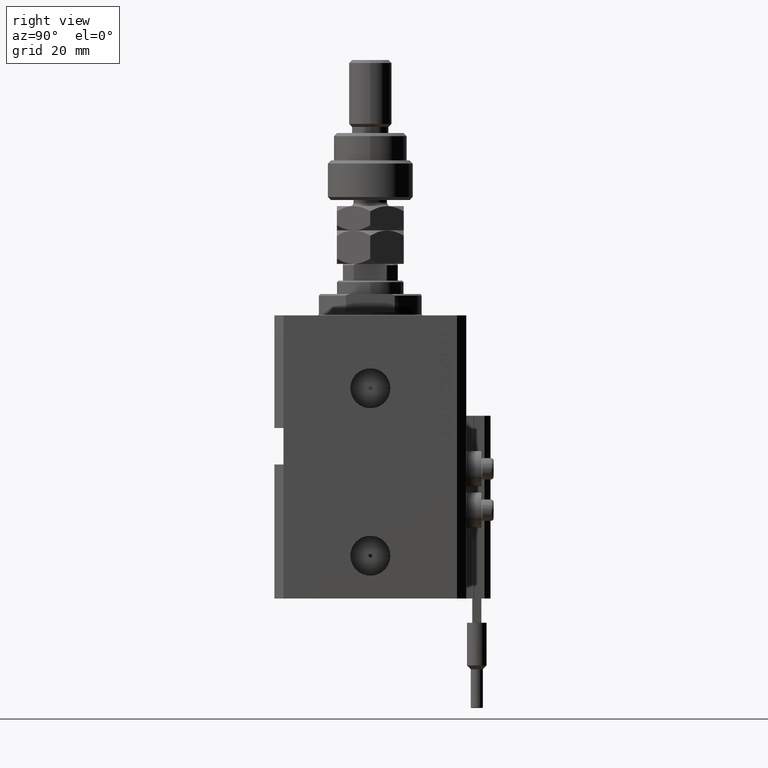
[diagram: clean part render]
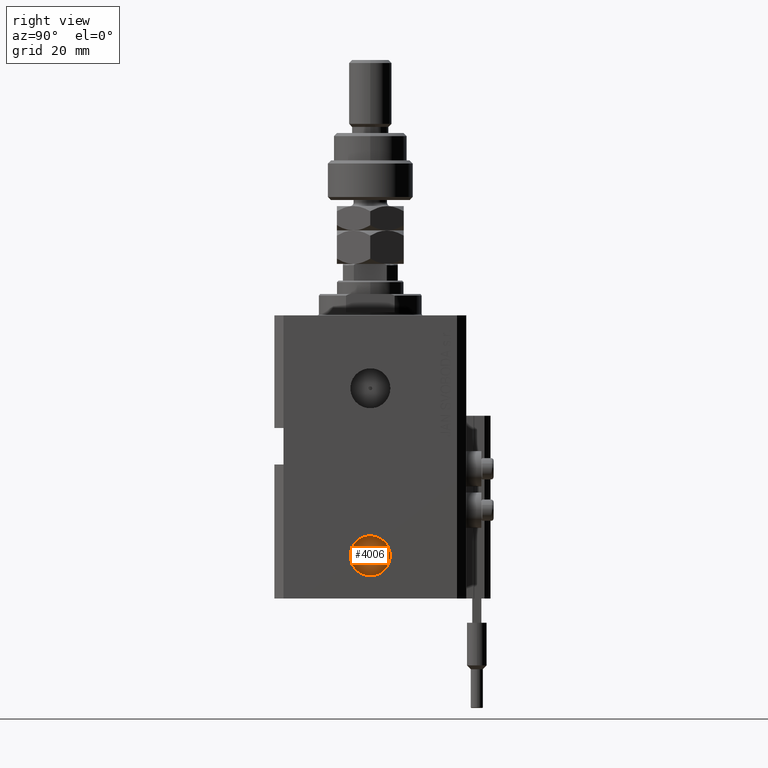
[diagram: same view with one face highlighted and labeled with its STEP entity id]
A machine part, right view. The second image highlights one B-rep face of the part: STEP entity #4006.
In plain terms, the highlighted planar face has unit normal (1, -0, 0).
Its self-contained STEP definition (entity closure, byte-faithful):
#1111 = DIRECTION ( 'NONE',  ( 1.000000000000000000, -1.334402673828349134E-14, 0.000000000000000000 ) ) ;
#1588 = EDGE_CURVE ( 'NONE', #45382, #35412, #45428, .T. ) ;
#4006 = ADVANCED_FACE ( 'NONE', ( #17024, #28217 ), #20655, .T. ) ;
#4953 = DIRECTION ( 'NONE',  ( 1.000000000000000000, -1.334402673828349134E-14, 0.000000000000000000 ) ) ;
#6340 = EDGE_CURVE ( 'NONE', #14821, #37949, #26599, .T. ) ;
#8488 = CARTESIAN_POINT ( 'NONE',  ( 29.40000000000026503, -2.028760275683516938E-13, -79.00000000000000000 ) ) ;
#8898 = CARTESIAN_POINT ( 'NONE',  ( 29.40000000000035385, 6.579999999999785132, -79.00000000000000000 ) ) ;
#9804 = AXIS2_PLACEMENT_3D ( 'NONE', #22197, #50446, #14915 ) ;
#12463 = DIRECTION ( 'NONE',  ( 1.110223024625146916E-14, 1.000000000000000000, 0.000000000000000000 ) ) ;
#12507 = AXIS2_PLACEMENT_3D ( 'NONE', #24693, #1111, #45427 ) ;
#13039 = CARTESIAN_POINT ( 'NONE',  ( 29.40000000000025793, -0.6250000000002082778, -79.00000000000000000 ) ) ;
#13366 = DIRECTION ( 'NONE',  ( 1.318178933113077855E-14, 1.000000000000000000, 0.000000000000000000 ) ) ;
#14821 = VERTEX_POINT ( 'NONE', #8898 ) ;
#14915 = DIRECTION ( 'NONE',  ( 1.110223024625146916E-14, 1.000000000000000000, 0.000000000000000000 ) ) ;
#15903 = ORIENTED_EDGE ( 'NONE', *, *, #22888, .F. ) ;
#16599 = CARTESIAN_POINT ( 'NONE',  ( 29.40000000000026503, -2.028760275683516938E-13, -79.00000000000000000 ) ) ;
#17024 = FACE_BOUND ( 'NONE', #28944, .T. ) ;
#20655 = PLANE ( 'NONE',  #38918 ) ;
#22197 = CARTESIAN_POINT ( 'NONE',  ( 29.40000000000026503, -2.028760275683516938E-13, -79.00000000000000000 ) ) ;
#22888 = EDGE_CURVE ( 'NONE', #35412, #45382, #44472, .T. ) ;
#24693 = CARTESIAN_POINT ( 'NONE',  ( 29.40000000000026503, -2.028760275683516938E-13, -79.00000000000000000 ) ) ;
#25980 = ORIENTED_EDGE ( 'NONE', *, *, #1588, .F. ) ;
#26599 = CIRCLE ( 'NONE', #12507, 6.579999999999987637 ) ;
#28217 = FACE_OUTER_BOUND ( 'NONE', #38948, .T. ) ;
#28783 = AXIS2_PLACEMENT_3D ( 'NONE', #48900, #41385, #13366 ) ;
#28944 = EDGE_LOOP ( 'NONE', ( #25980, #15903 ) ) ;
#32672 = ORIENTED_EDGE ( 'NONE', *, *, #37051, .T. ) ;
#32722 = ORIENTED_EDGE ( 'NONE', *, *, #6340, .T. ) ;
#32867 = DIRECTION ( 'NONE',  ( 1.000000000000000000, -1.334402673828349134E-14, 0.000000000000000000 ) ) ;
#35401 = CIRCLE ( 'NONE', #28783, 6.579999999999987637 ) ;
#35412 = VERTEX_POINT ( 'NONE', #13039 ) ;
#36999 = AXIS2_PLACEMENT_3D ( 'NONE', #16599, #4953, #12463 ) ;
#37051 = EDGE_CURVE ( 'NONE', #37949, #14821, #35401, .T. ) ;
#37949 = VERTEX_POINT ( 'NONE', #48982 ) ;
#38918 = AXIS2_PLACEMENT_3D ( 'NONE', #8488, #32867, #48680 ) ;
#38948 = EDGE_LOOP ( 'NONE', ( #32722, #32672 ) ) ;
#41385 = DIRECTION ( 'NONE',  ( 1.000000000000000000, -1.334402673828349134E-14, 0.000000000000000000 ) ) ;
#42278 = CARTESIAN_POINT ( 'NONE',  ( 29.40000000000027214, 0.6249999999998026023, -79.00000000000000000 ) ) ;
#44472 = CIRCLE ( 'NONE', #36999, 0.6250000000000054401 ) ;
#45382 = VERTEX_POINT ( 'NONE', #42278 ) ;
#45427 = DIRECTION ( 'NONE',  ( 1.318178933113077855E-14, 1.000000000000000000, 0.000000000000000000 ) ) ;
#45428 = CIRCLE ( 'NONE', #9804, 0.6250000000000054401 ) ;
#48680 = DIRECTION ( 'NONE',  ( 1.334402673828349134E-14, 1.000000000000000000, 0.000000000000000000 ) ) ;
#48900 = CARTESIAN_POINT ( 'NONE',  ( 29.40000000000026503, -2.028760275683516938E-13, -79.00000000000000000 ) ) ;
#48982 = CARTESIAN_POINT ( 'NONE',  ( 29.40000000000017977, -6.580000000000191029, -79.00000000000000000 ) ) ;
#50446 = DIRECTION ( 'NONE',  ( 1.000000000000000000, -1.334402673828349134E-14, 0.000000000000000000 ) ) ;